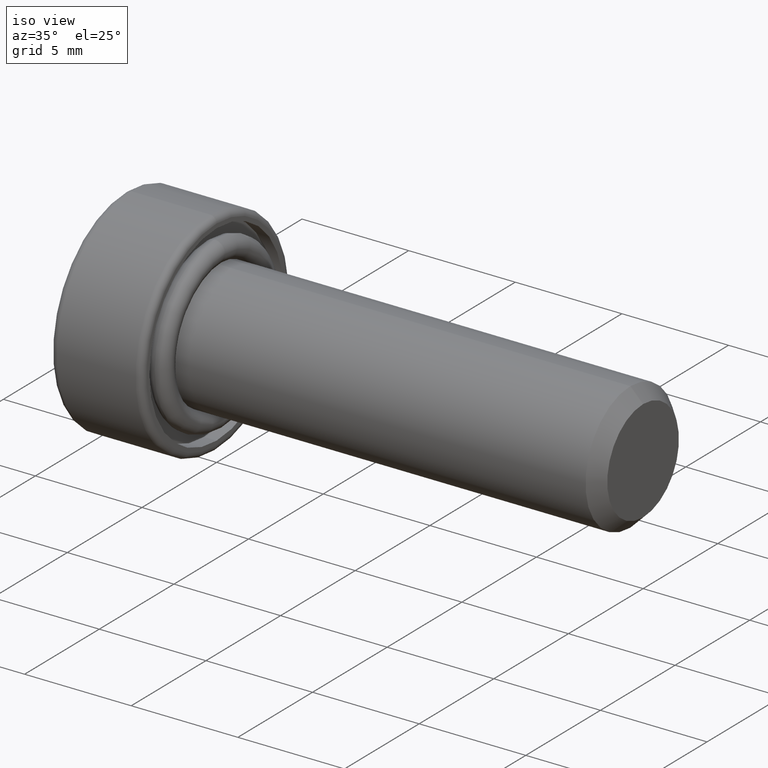
[diagram: clean part render]
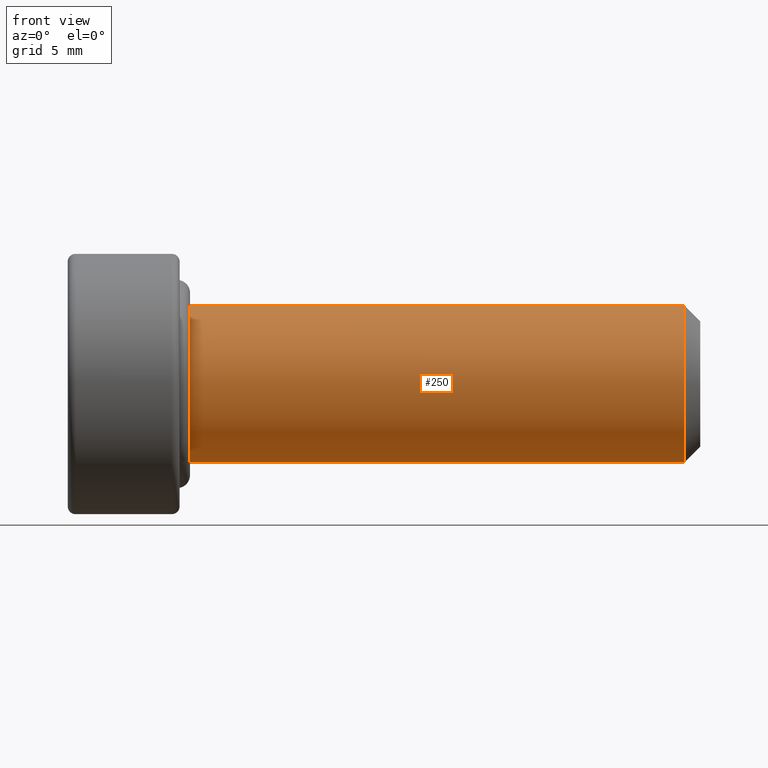
[diagram: tour spotlight — one face highlighted and labeled with its STEP entity id]
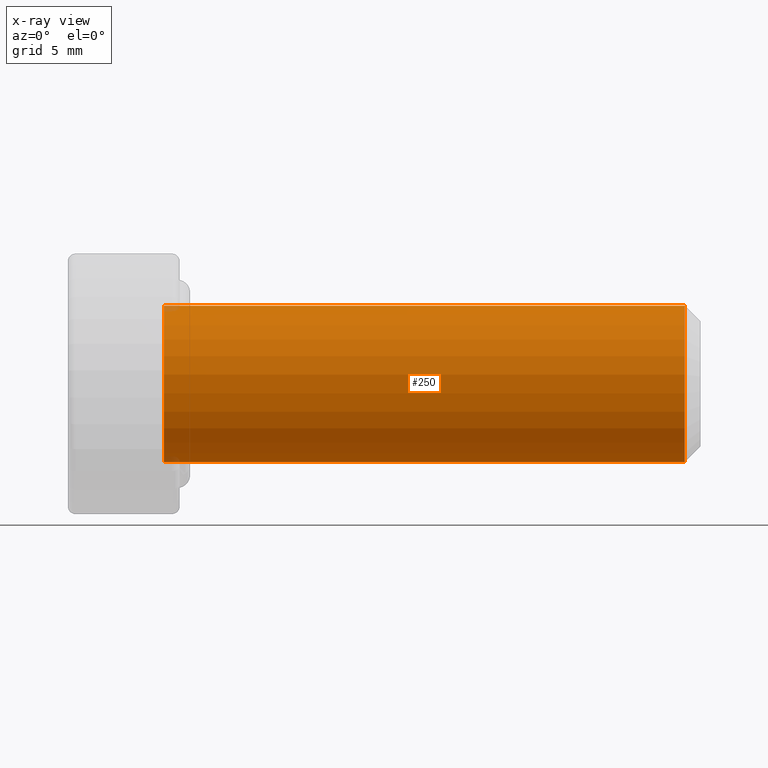
[diagram: x-ray of the same camera — body ghosted, this tour face saturated]
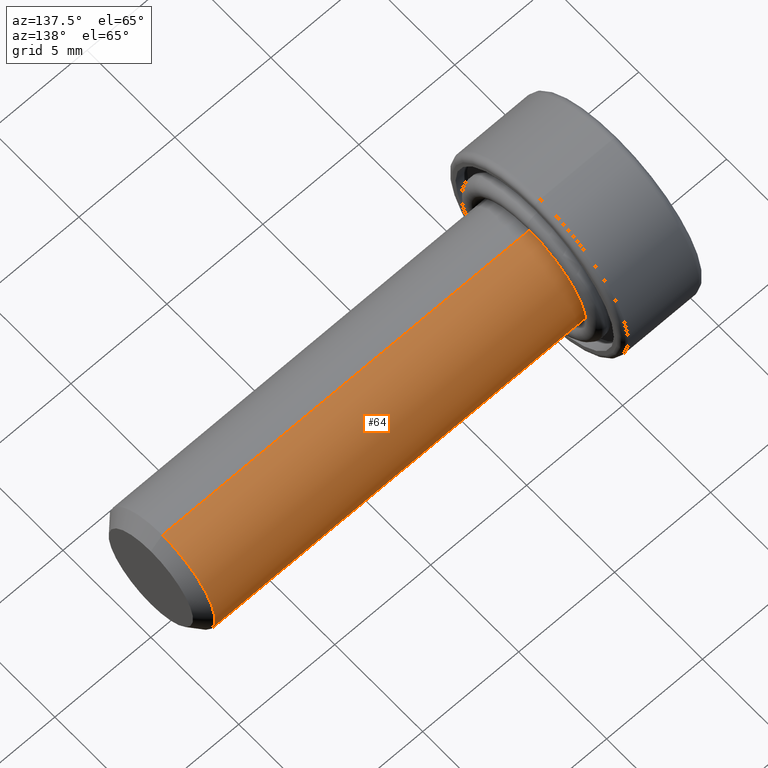
[diagram: tour spotlight — one face highlighted and labeled with its STEP entity id]
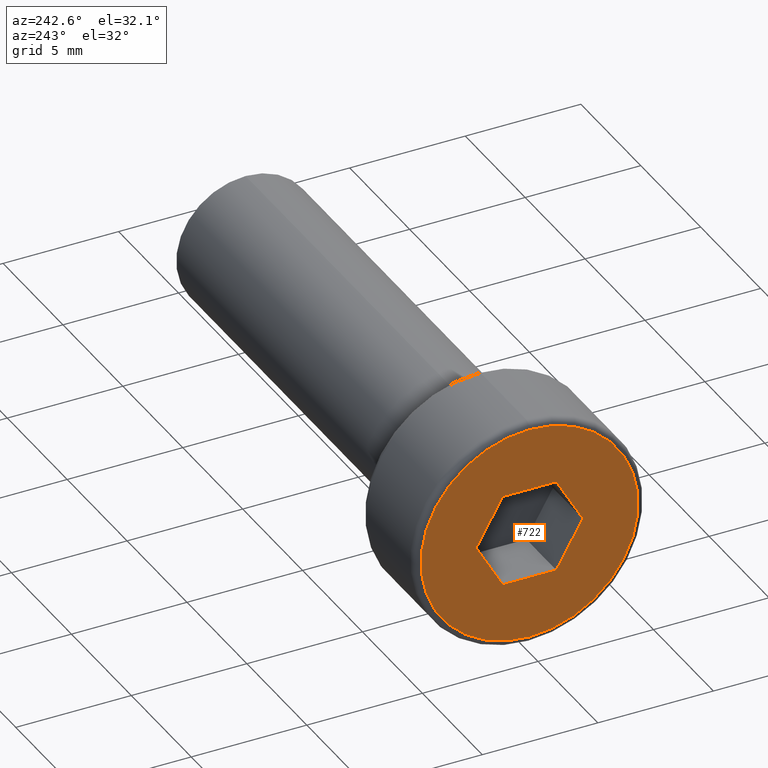
[diagram: tour spotlight — one face highlighted and labeled with its STEP entity id]
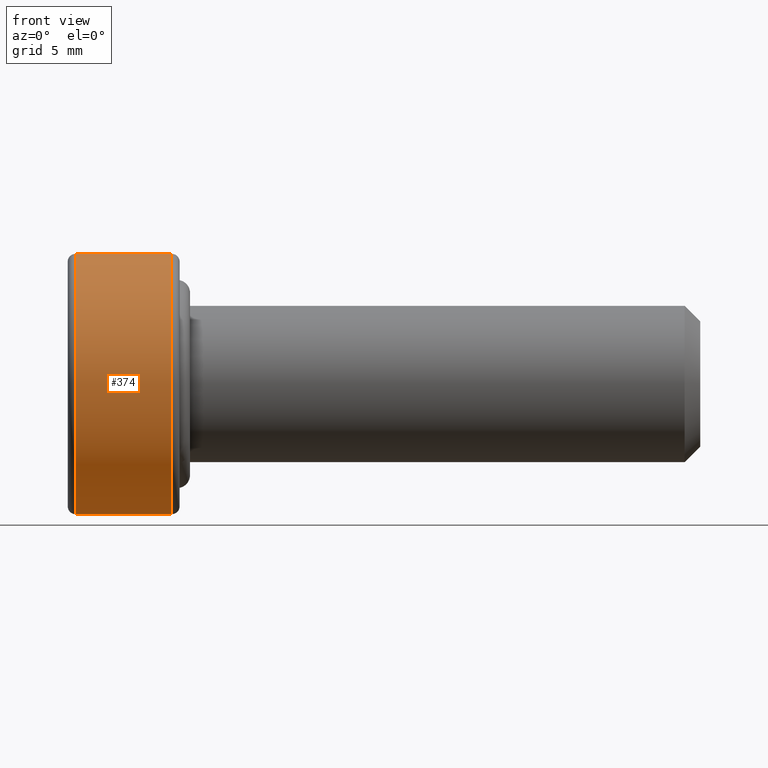
[diagram: tour spotlight — one face highlighted and labeled with its STEP entity id]
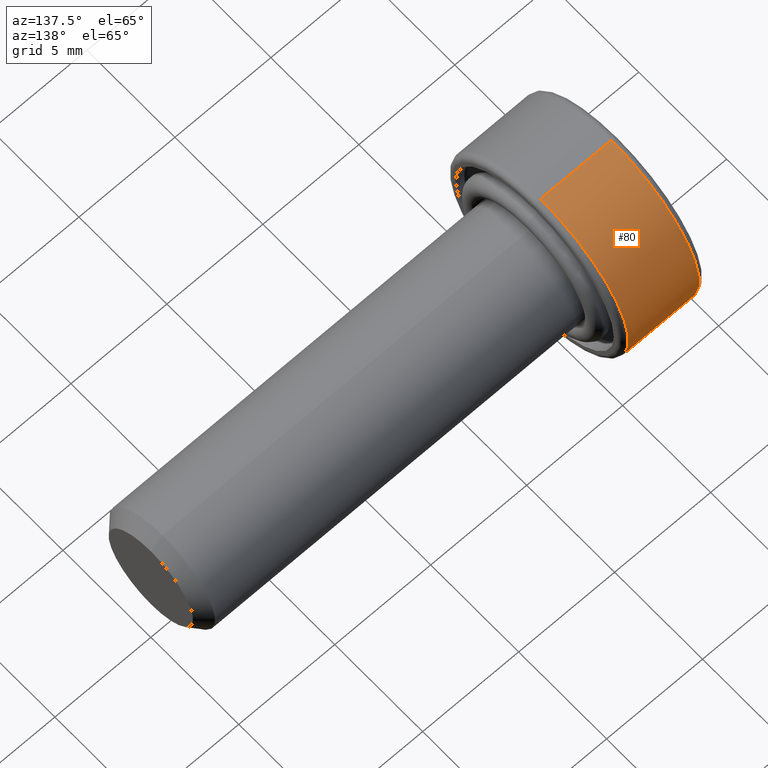
[diagram: tour spotlight — one face highlighted and labeled with its STEP entity id]
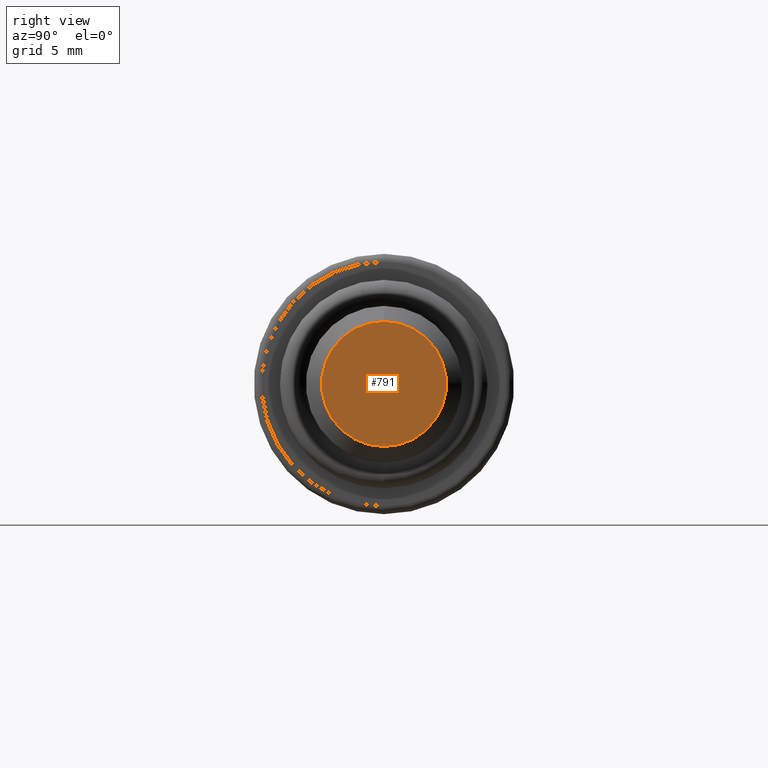
[diagram: tour spotlight — one face highlighted and labeled with its STEP entity id]
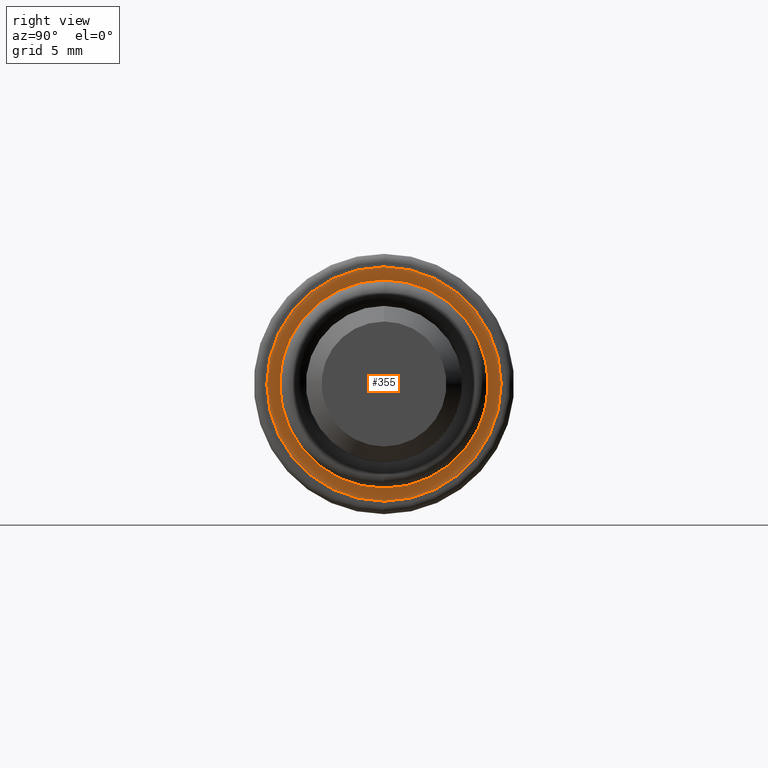
[diagram: tour spotlight — one face highlighted and labeled with its STEP entity id]
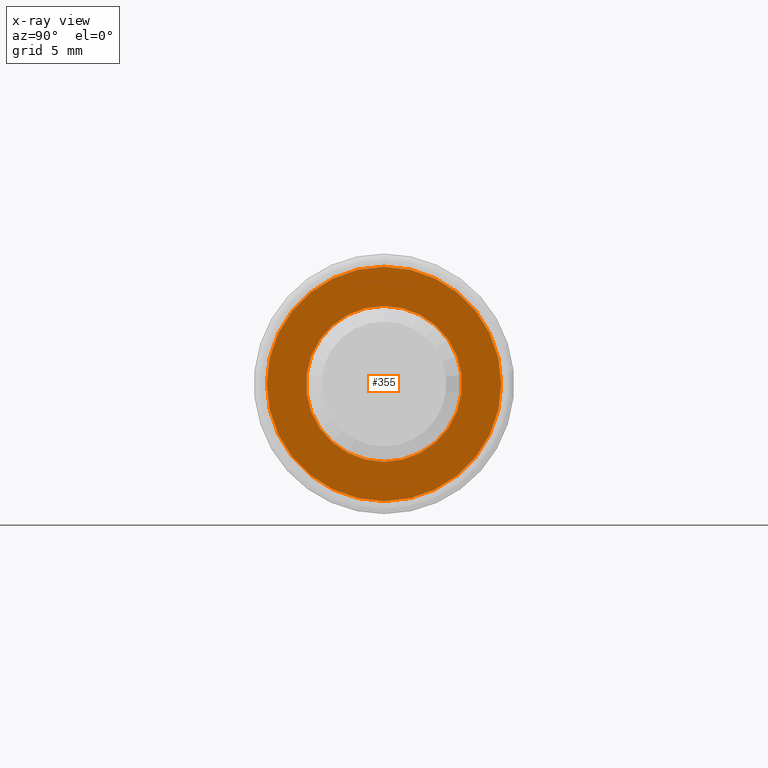
[diagram: x-ray of the same camera — body ghosted, this tour face saturated]
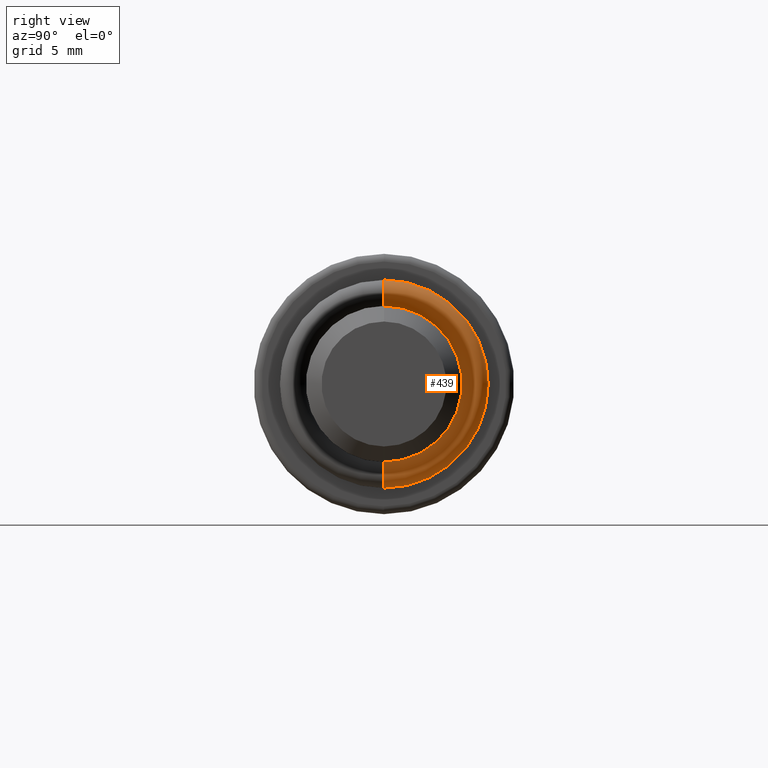
[diagram: tour spotlight — one face highlighted and labeled with its STEP entity id]
A machine part: a face-by-face anatomy tour. The part has 27 B-rep faces; the first image is the clean iso view, then the 8 largest visible faces are spotlighted one at a time (largest first), each with its STEP entity span.

Face 1 — front view, entity #250. An x-ray twin of the same camera follows (body ghosted, this face saturated) — the face is partly hidden behind the body. In plain terms, the highlighted cylindrical surface (partial cylindrical patch) has radius 3 mm, axis along (-1, -0, -0).
Definition (entity closure, byte-faithful):
#61 = VERTEX_POINT ( 'NONE', #526 ) ;
#62 = FACE_OUTER_BOUND ( 'NONE', #573, .T. ) ;
#65 = CARTESIAN_POINT ( 'NONE',  ( 19.39999999999999500, 3.673940397442060400E-016, -3.000000000000000400 ) ) ;
#110 = CARTESIAN_POINT ( 'NONE',  ( 20.00000000000000000, 3.673940397442060400E-016, -3.000000000000000400 ) ) ;
#154 = CARTESIAN_POINT ( 'NONE',  ( 19.39999999999999500, 0.0000000000000000000, 0.0000000000000000000 ) ) ;
#165 = CIRCLE ( 'NONE', #519, 3.000000000000000400 ) ;
#169 = VERTEX_POINT ( 'NONE', #455 ) ;
#175 = LINE ( 'NONE', #110, #485 ) ;
#183 = AXIS2_PLACEMENT_3D ( 'NONE', #154, #285, #223 ) ;
#188 = ORIENTED_EDGE ( 'NONE', *, *, #580, .T. ) ;
#207 = DIRECTION ( 'NONE',  ( -1.000000000000000000, -0.0000000000000000000, -0.0000000000000000000 ) ) ;
#214 = AXIS2_PLACEMENT_3D ( 'NONE', #444, #236, #234 ) ;
#223 = DIRECTION ( 'NONE',  ( 0.0000000000000000000, 0.0000000000000000000, -1.000000000000000000 ) ) ;
#234 = DIRECTION ( 'NONE',  ( 0.0000000000000000000, 0.0000000000000000000, 1.000000000000000000 ) ) ;
#236 = DIRECTION ( 'NONE',  ( -1.000000000000000000, -0.0000000000000000000, -0.0000000000000000000 ) ) ;
#250 = ADVANCED_FACE ( 'NONE', ( #62 ), #570, .T. ) ;
#257 = DIRECTION ( 'NONE',  ( 1.000000000000000000, 0.0000000000000000000, 0.0000000000000000000 ) ) ;
#285 = DIRECTION ( 'NONE',  ( -1.000000000000000000, 0.0000000000000000000, 0.0000000000000000000 ) ) ;
#305 = ORIENTED_EDGE ( 'NONE', *, *, #586, .T. ) ;
#360 = DIRECTION ( 'NONE',  ( 0.0000000000000000000, 0.0000000000000000000, -1.000000000000000000 ) ) ;
#418 = CARTESIAN_POINT ( 'NONE',  ( -0.5999999999999999800, 0.0000000000000000000, 3.000000000000000400 ) ) ;
#420 = CARTESIAN_POINT ( 'NONE',  ( -0.5999999999999999800, 0.0000000000000000000, 0.0000000000000000000 ) ) ;
#426 = DIRECTION ( 'NONE',  ( -1.000000000000000000, -0.0000000000000000000, -0.0000000000000000000 ) ) ;
#436 = ORIENTED_EDGE ( 'NONE', *, *, #764, .F. ) ;
#444 = CARTESIAN_POINT ( 'NONE',  ( 20.00000000000000000, 0.0000000000000000000, 0.0000000000000000000 ) ) ;
#455 = CARTESIAN_POINT ( 'NONE',  ( 19.39999999999999500, 0.0000000000000000000, 3.000000000000000400 ) ) ;
#467 = CARTESIAN_POINT ( 'NONE',  ( 20.00000000000000000, 0.0000000000000000000, 3.000000000000000400 ) ) ;
#469 = VECTOR ( 'NONE', #426, 1000.000000000000000 ) ;
#485 = VECTOR ( 'NONE', #207, 1000.000000000000000 ) ;
#519 = AXIS2_PLACEMENT_3D ( 'NONE', #420, #257, #360 ) ;
#526 = CARTESIAN_POINT ( 'NONE',  ( -0.5999999999999999800, 3.673940397442060400E-016, -3.000000000000000400 ) ) ;
#570 = CYLINDRICAL_SURFACE ( 'NONE', #214, 3.000000000000000400 ) ;
#573 = EDGE_LOOP ( 'NONE', ( #436, #721, #305, #188 ) ) ;
#580 = EDGE_CURVE ( 'NONE', #777, #61, #165, .T. ) ;
#586 = EDGE_CURVE ( 'NONE', #169, #777, #801, .T. ) ;
#613 = VERTEX_POINT ( 'NONE', #65 ) ;
#649 = EDGE_CURVE ( 'NONE', #613, #169, #762, .T. ) ;
#721 = ORIENTED_EDGE ( 'NONE', *, *, #649, .T. ) ;
#762 = CIRCLE ( 'NONE', #183, 3.000000000000000400 ) ;
#764 = EDGE_CURVE ( 'NONE', #613, #61, #175, .T. ) ;
#777 = VERTEX_POINT ( 'NONE', #418 ) ;
#801 = LINE ( 'NONE', #467, #469 ) ;

Face 2 — auxiliary view, entity #64. In plain terms, the highlighted cylindrical surface (partial cylindrical patch) has radius 3 mm, axis along (-1, -0, -0).
Definition (entity closure, byte-faithful):
#3 = CYLINDRICAL_SURFACE ( 'NONE', #367, 3.000000000000000400 ) ;
#53 = DIRECTION ( 'NONE',  ( 0.0000000000000000000, 0.0000000000000000000, 1.000000000000000000 ) ) ;
#61 = VERTEX_POINT ( 'NONE', #526 ) ;
#64 = ADVANCED_FACE ( 'NONE', ( #338 ), #3, .T. ) ;
#65 = CARTESIAN_POINT ( 'NONE',  ( 19.39999999999999500, 3.673940397442060400E-016, -3.000000000000000400 ) ) ;
#66 = DIRECTION ( 'NONE',  ( -1.000000000000000000, -0.0000000000000000000, -0.0000000000000000000 ) ) ;
#110 = CARTESIAN_POINT ( 'NONE',  ( 20.00000000000000000, 3.673940397442060400E-016, -3.000000000000000400 ) ) ;
#135 = ORIENTED_EDGE ( 'NONE', *, *, #655, .T. ) ;
#146 = EDGE_CURVE ( 'NONE', #169, #613, #293, .T. ) ;
#169 = VERTEX_POINT ( 'NONE', #455 ) ;
#175 = LINE ( 'NONE', #110, #485 ) ;
#207 = DIRECTION ( 'NONE',  ( -1.000000000000000000, -0.0000000000000000000, -0.0000000000000000000 ) ) ;
#280 = DIRECTION ( 'NONE',  ( 1.000000000000000000, 0.0000000000000000000, 0.0000000000000000000 ) ) ;
#292 = DIRECTION ( 'NONE',  ( 0.0000000000000000000, 0.0000000000000000000, -1.000000000000000000 ) ) ;
#293 = CIRCLE ( 'NONE', #674, 3.000000000000000400 ) ;
#312 = DIRECTION ( 'NONE',  ( -1.000000000000000000, 0.0000000000000000000, 0.0000000000000000000 ) ) ;
#319 = CARTESIAN_POINT ( 'NONE',  ( 19.39999999999999500, 0.0000000000000000000, 0.0000000000000000000 ) ) ;
#320 = AXIS2_PLACEMENT_3D ( 'NONE', #784, #280, #750 ) ;
#338 = FACE_OUTER_BOUND ( 'NONE', #639, .T. ) ;
#367 = AXIS2_PLACEMENT_3D ( 'NONE', #806, #66, #53 ) ;
#418 = CARTESIAN_POINT ( 'NONE',  ( -0.5999999999999999800, 0.0000000000000000000, 3.000000000000000400 ) ) ;
#426 = DIRECTION ( 'NONE',  ( -1.000000000000000000, -0.0000000000000000000, -0.0000000000000000000 ) ) ;
#455 = CARTESIAN_POINT ( 'NONE',  ( 19.39999999999999500, 0.0000000000000000000, 3.000000000000000400 ) ) ;
#467 = CARTESIAN_POINT ( 'NONE',  ( 20.00000000000000000, 0.0000000000000000000, 3.000000000000000400 ) ) ;
#469 = VECTOR ( 'NONE', #426, 1000.000000000000000 ) ;
#485 = VECTOR ( 'NONE', #207, 1000.000000000000000 ) ;
#526 = CARTESIAN_POINT ( 'NONE',  ( -0.5999999999999999800, 3.673940397442060400E-016, -3.000000000000000400 ) ) ;
#544 = CIRCLE ( 'NONE', #320, 3.000000000000000400 ) ;
#586 = EDGE_CURVE ( 'NONE', #169, #777, #801, .T. ) ;
#613 = VERTEX_POINT ( 'NONE', #65 ) ;
#639 = EDGE_LOOP ( 'NONE', ( #733, #819, #135, #800 ) ) ;
#655 = EDGE_CURVE ( 'NONE', #61, #777, #544, .T. ) ;
#674 = AXIS2_PLACEMENT_3D ( 'NONE', #319, #312, #292 ) ;
#733 = ORIENTED_EDGE ( 'NONE', *, *, #146, .T. ) ;
#750 = DIRECTION ( 'NONE',  ( 0.0000000000000000000, 0.0000000000000000000, -1.000000000000000000 ) ) ;
#764 = EDGE_CURVE ( 'NONE', #613, #61, #175, .T. ) ;
#777 = VERTEX_POINT ( 'NONE', #418 ) ;
#784 = CARTESIAN_POINT ( 'NONE',  ( -0.5999999999999999800, 0.0000000000000000000, 0.0000000000000000000 ) ) ;
#800 = ORIENTED_EDGE ( 'NONE', *, *, #586, .F. ) ;
#801 = LINE ( 'NONE', #467, #469 ) ;
#806 = CARTESIAN_POINT ( 'NONE',  ( 20.00000000000000000, 0.0000000000000000000, 0.0000000000000000000 ) ) ;
#819 = ORIENTED_EDGE ( 'NONE', *, *, #764, .T. ) ;

Face 3 — auxiliary view, entity #722. In plain terms, the highlighted planar face has unit normal (1, 0, 0).
Definition (entity closure, byte-faithful):
#7 = ORIENTED_EDGE ( 'NONE', *, *, #36, .F. ) ;
#12 = EDGE_CURVE ( 'NONE', #199, #616, #383, .T. ) ;
#24 = ORIENTED_EDGE ( 'NONE', *, *, #12, .F. ) ;
#36 = EDGE_CURVE ( 'NONE', #76, #172, #705, .T. ) ;
#37 = LINE ( 'NONE', #787, #536 ) ;
#40 = DIRECTION ( 'NONE',  ( 0.0000000000000000000, 0.0000000000000000000, -1.000000000000000000 ) ) ;
#68 = VERTEX_POINT ( 'NONE', #647 ) ;
#72 = DIRECTION ( 'NONE',  ( -0.0000000000000000000, -0.5000000000000000000, 0.8660254037844386000 ) ) ;
#76 = VERTEX_POINT ( 'NONE', #168 ) ;
#81 = ORIENTED_EDGE ( 'NONE', *, *, #689, .F. ) ;
#90 = CARTESIAN_POINT ( 'NONE',  ( -4.299999999999999800, -1.154700538379260100, 2.000000000000015100 ) ) ;
#91 = ORIENTED_EDGE ( 'NONE', *, *, #398, .F. ) ;
#101 = VERTEX_POINT ( 'NONE', #502 ) ;
#127 = DIRECTION ( 'NONE',  ( -0.0000000000000000000, -0.4999999999999994400, -0.8660254037844389300 ) ) ;
#130 = CARTESIAN_POINT ( 'NONE',  ( -4.299999999999999800, 1.154700538379260600, -2.000000000000013800 ) ) ;
#168 = CARTESIAN_POINT ( 'NONE',  ( -4.299999999999999800, 2.309401076758518900, 8.673617379884035500E-016 ) ) ;
#172 = VERTEX_POINT ( 'NONE', #130 ) ;
#199 = VERTEX_POINT ( 'NONE', #583 ) ;
#200 = AXIS2_PLACEMENT_3D ( 'NONE', #400, #598, #556 ) ;
#201 = CIRCLE ( 'NONE', #200, 4.700000000000000200 ) ;
#203 = VECTOR ( 'NONE', #266, 1000.000000000000100 ) ;
#211 = CARTESIAN_POINT ( 'NONE',  ( -4.299999999999999800, -1.154700538379260100, 2.000000000000015100 ) ) ;
#216 = FACE_BOUND ( 'NONE', #738, .T. ) ;
#266 = DIRECTION ( 'NONE',  ( -0.0000000000000000000, 0.4999999999999993300, 0.8660254037844389300 ) ) ;
#276 = ORIENTED_EDGE ( 'NONE', *, *, #599, .T. ) ;
#286 = CARTESIAN_POINT ( 'NONE',  ( -4.299999999999999800, -2.309401076758518000, 8.673617379884035500E-016 ) ) ;
#299 = ORIENTED_EDGE ( 'NONE', *, *, #508, .T. ) ;
#323 = DIRECTION ( 'NONE',  ( -0.0000000000000000000, 0.5000000000000003300, -0.8660254037844383700 ) ) ;
#327 = LINE ( 'NONE', #621, #512 ) ;
#330 = ORIENTED_EDGE ( 'NONE', *, *, #515, .F. ) ;
#344 = ORIENTED_EDGE ( 'NONE', *, *, #758, .F. ) ;
#362 = VECTOR ( 'NONE', #127, 1000.000000000000200 ) ;
#363 = DIRECTION ( 'NONE',  ( -0.0000000000000000000, 1.000000000000000000, -7.511572993685745900E-016 ) ) ;
#368 = DIRECTION ( 'NONE',  ( 1.000000000000000000, 0.0000000000000000000, 0.0000000000000000000 ) ) ;
#373 = LINE ( 'NONE', #572, #698 ) ;
#383 = LINE ( 'NONE', #90, #203 ) ;
#398 = EDGE_CURVE ( 'NONE', #752, #199, #662, .T. ) ;
#400 = CARTESIAN_POINT ( 'NONE',  ( -4.299999999999999800, 0.0000000000000000000, 0.0000000000000000000 ) ) ;
#483 = VECTOR ( 'NONE', #72, 1000.000000000000200 ) ;
#484 = DIRECTION ( 'NONE',  ( -0.0000000000000000000, -1.000000000000000000, 3.755786496842872900E-016 ) ) ;
#502 = CARTESIAN_POINT ( 'NONE',  ( -4.299999999999999800, 0.0000000000000000000, -4.700000000000000200 ) ) ;
#503 = AXIS2_PLACEMENT_3D ( 'NONE', #624, #368, #513 ) ;
#508 = EDGE_CURVE ( 'NONE', #101, #603, #201, .T. ) ;
#512 = VECTOR ( 'NONE', #484, 1000.000000000000000 ) ;
#513 = DIRECTION ( 'NONE',  ( 0.0000000000000000000, 0.0000000000000000000, -1.000000000000000000 ) ) ;
#515 = EDGE_CURVE ( 'NONE', #68, #76, #37, .T. ) ;
#531 = FACE_OUTER_BOUND ( 'NONE', #735, .T. ) ;
#533 = DIRECTION ( 'NONE',  ( -1.000000000000000000, -0.0000000000000000000, -0.0000000000000000000 ) ) ;
#536 = VECTOR ( 'NONE', #323, 1000.000000000000200 ) ;
#540 = CARTESIAN_POINT ( 'NONE',  ( -4.299999999999999800, -1.154700538379258100, -2.000000000000012900 ) ) ;
#556 = DIRECTION ( 'NONE',  ( 0.0000000000000000000, 0.0000000000000000000, -1.000000000000000000 ) ) ;
#572 = CARTESIAN_POINT ( 'NONE',  ( -4.299999999999999800, 1.154700538379259000, 2.000000000000013300 ) ) ;
#583 = CARTESIAN_POINT ( 'NONE',  ( -4.299999999999999800, -2.309401076758518000, 8.673617379884035500E-016 ) ) ;
#598 = DIRECTION ( 'NONE',  ( -1.000000000000000000, -0.0000000000000000000, -0.0000000000000000000 ) ) ;
#599 = EDGE_CURVE ( 'NONE', #603, #101, #651, .T. ) ;
#600 = AXIS2_PLACEMENT_3D ( 'NONE', #731, #533, #40 ) ;
#603 = VERTEX_POINT ( 'NONE', #620 ) ;
#616 = VERTEX_POINT ( 'NONE', #211 ) ;
#620 = CARTESIAN_POINT ( 'NONE',  ( -4.299999999999999800, 5.939536975864663000E-016, 4.700000000000000200 ) ) ;
#621 = CARTESIAN_POINT ( 'NONE',  ( -4.299999999999999800, -1.154700538379258300, -2.000000000000012900 ) ) ;
#624 = CARTESIAN_POINT ( 'NONE',  ( -4.299999999999999800, 0.0000000000000000000, 0.0000000000000000000 ) ) ;
#645 = CARTESIAN_POINT ( 'NONE',  ( -4.299999999999999800, 1.154700538379260600, -2.000000000000013800 ) ) ;
#647 = CARTESIAN_POINT ( 'NONE',  ( -4.299999999999999800, 1.154700538379259000, 2.000000000000013300 ) ) ;
#651 = CIRCLE ( 'NONE', #600, 4.700000000000000200 ) ;
#662 = LINE ( 'NONE', #286, #483 ) ;
#689 = EDGE_CURVE ( 'NONE', #616, #68, #373, .T. ) ;
#698 = VECTOR ( 'NONE', #363, 1000.000000000000000 ) ;
#705 = LINE ( 'NONE', #645, #362 ) ;
#722 = ADVANCED_FACE ( 'NONE', ( #216, #531 ), #726, .F. ) ;
#726 = PLANE ( 'NONE',  #503 ) ;
#731 = CARTESIAN_POINT ( 'NONE',  ( -4.299999999999999800, 0.0000000000000000000, 0.0000000000000000000 ) ) ;
#735 = EDGE_LOOP ( 'NONE', ( #299, #276 ) ) ;
#738 = EDGE_LOOP ( 'NONE', ( #91, #344, #7, #330, #81, #24 ) ) ;
#752 = VERTEX_POINT ( 'NONE', #540 ) ;
#758 = EDGE_CURVE ( 'NONE', #172, #752, #327, .T. ) ;
#787 = CARTESIAN_POINT ( 'NONE',  ( -4.299999999999999800, 2.309401076758518900, 8.673617379884035500E-016 ) ) ;

Face 4 — front view, entity #374. In plain terms, the highlighted cylindrical surface (partial cylindrical patch) has radius 5 mm, axis along (1, 0, 0).
Definition (entity closure, byte-faithful):
#1 = VERTEX_POINT ( 'NONE', #497 ) ;
#6 = AXIS2_PLACEMENT_3D ( 'NONE', #700, #816, #308 ) ;
#33 = DIRECTION ( 'NONE',  ( 1.000000000000000000, 0.0000000000000000000, 0.0000000000000000000 ) ) ;
#69 = CARTESIAN_POINT ( 'NONE',  ( -4.000000000000000000, 6.123233995736765300E-016, 5.000000000000000000 ) ) ;
#93 = ORIENTED_EDGE ( 'NONE', *, *, #204, .T. ) ;
#171 = VERTEX_POINT ( 'NONE', #691 ) ;
#204 = EDGE_CURVE ( 'NONE', #171, #637, #653, .T. ) ;
#205 = DIRECTION ( 'NONE',  ( 0.0000000000000000000, 0.0000000000000000000, -1.000000000000000000 ) ) ;
#225 = CARTESIAN_POINT ( 'NONE',  ( -4.000000000000000000, 0.0000000000000000000, 0.0000000000000000000 ) ) ;
#238 = VERTEX_POINT ( 'NONE', #69 ) ;
#246 = EDGE_CURVE ( 'NONE', #238, #637, #434, .T. ) ;
#308 = DIRECTION ( 'NONE',  ( 0.0000000000000000000, 0.0000000000000000000, -1.000000000000000000 ) ) ;
#317 = CIRCLE ( 'NONE', #464, 5.000000000000000000 ) ;
#324 = CYLINDRICAL_SURFACE ( 'NONE', #571, 5.000000000000000000 ) ;
#331 = EDGE_CURVE ( 'NONE', #1, #171, #585, .T. ) ;
#349 = FACE_OUTER_BOUND ( 'NONE', #535, .T. ) ;
#353 = DIRECTION ( 'NONE',  ( 0.0000000000000000000, 0.0000000000000000000, -1.000000000000000000 ) ) ;
#364 = DIRECTION ( 'NONE',  ( 1.000000000000000000, 0.0000000000000000000, 0.0000000000000000000 ) ) ;
#374 = ADVANCED_FACE ( 'NONE', ( #349 ), #324, .T. ) ;
#384 = DIRECTION ( 'NONE',  ( 1.000000000000000000, 0.0000000000000000000, 0.0000000000000000000 ) ) ;
#388 = CARTESIAN_POINT ( 'NONE',  ( -4.299999999999999800, 6.123233995736765300E-016, 5.000000000000000000 ) ) ;
#389 = ORIENTED_EDGE ( 'NONE', *, *, #561, .T. ) ;
#415 = VECTOR ( 'NONE', #384, 1000.000000000000000 ) ;
#423 = ORIENTED_EDGE ( 'NONE', *, *, #331, .T. ) ;
#434 = LINE ( 'NONE', #388, #415 ) ;
#464 = AXIS2_PLACEMENT_3D ( 'NONE', #225, #364, #205 ) ;
#497 = CARTESIAN_POINT ( 'NONE',  ( -4.000000000000000000, 0.0000000000000000000, -5.000000000000000000 ) ) ;
#535 = EDGE_LOOP ( 'NONE', ( #650, #389, #423, #93 ) ) ;
#545 = VECTOR ( 'NONE', #703, 1000.000000000000000 ) ;
#561 = EDGE_CURVE ( 'NONE', #238, #1, #317, .T. ) ;
#571 = AXIS2_PLACEMENT_3D ( 'NONE', #794, #33, #353 ) ;
#585 = LINE ( 'NONE', #626, #545 ) ;
#626 = CARTESIAN_POINT ( 'NONE',  ( -4.299999999999999800, 0.0000000000000000000, -5.000000000000000000 ) ) ;
#637 = VERTEX_POINT ( 'NONE', #692 ) ;
#650 = ORIENTED_EDGE ( 'NONE', *, *, #246, .F. ) ;
#653 = CIRCLE ( 'NONE', #6, 5.000000000000000000 ) ;
#691 = CARTESIAN_POINT ( 'NONE',  ( -0.2999999999999999300, 0.0000000000000000000, -5.000000000000000000 ) ) ;
#692 = CARTESIAN_POINT ( 'NONE',  ( -0.2999999999999999300, 6.123233995736765300E-016, 5.000000000000000000 ) ) ;
#700 = CARTESIAN_POINT ( 'NONE',  ( -0.2999999999999999300, 0.0000000000000000000, 0.0000000000000000000 ) ) ;
#703 = DIRECTION ( 'NONE',  ( 1.000000000000000000, 0.0000000000000000000, 0.0000000000000000000 ) ) ;
#794 = CARTESIAN_POINT ( 'NONE',  ( -4.299999999999999800, 0.0000000000000000000, 0.0000000000000000000 ) ) ;
#816 = DIRECTION ( 'NONE',  ( -1.000000000000000000, -0.0000000000000000000, -0.0000000000000000000 ) ) ;

Face 5 — auxiliary view, entity #80. In plain terms, the highlighted cylindrical surface (partial cylindrical patch) has radius 5 mm, axis along (1, 0, 0).
Definition (entity closure, byte-faithful):
#1 = VERTEX_POINT ( 'NONE', #497 ) ;
#69 = CARTESIAN_POINT ( 'NONE',  ( -4.000000000000000000, 6.123233995736765300E-016, 5.000000000000000000 ) ) ;
#80 = ADVANCED_FACE ( 'NONE', ( #523 ), #318, .T. ) ;
#108 = DIRECTION ( 'NONE',  ( 1.000000000000000000, 0.0000000000000000000, 0.0000000000000000000 ) ) ;
#109 = DIRECTION ( 'NONE',  ( 1.000000000000000000, 0.0000000000000000000, 0.0000000000000000000 ) ) ;
#141 = ORIENTED_EDGE ( 'NONE', *, *, #331, .F. ) ;
#151 = CIRCLE ( 'NONE', #611, 5.000000000000000000 ) ;
#171 = VERTEX_POINT ( 'NONE', #691 ) ;
#210 = ORIENTED_EDGE ( 'NONE', *, *, #807, .T. ) ;
#238 = VERTEX_POINT ( 'NONE', #69 ) ;
#246 = EDGE_CURVE ( 'NONE', #238, #637, #434, .T. ) ;
#318 = CYLINDRICAL_SURFACE ( 'NONE', #453, 5.000000000000000000 ) ;
#326 = DIRECTION ( 'NONE',  ( 0.0000000000000000000, 0.0000000000000000000, -1.000000000000000000 ) ) ;
#329 = DIRECTION ( 'NONE',  ( -1.000000000000000000, -0.0000000000000000000, -0.0000000000000000000 ) ) ;
#331 = EDGE_CURVE ( 'NONE', #1, #171, #585, .T. ) ;
#369 = ORIENTED_EDGE ( 'NONE', *, *, #246, .T. ) ;
#384 = DIRECTION ( 'NONE',  ( 1.000000000000000000, 0.0000000000000000000, 0.0000000000000000000 ) ) ;
#388 = CARTESIAN_POINT ( 'NONE',  ( -4.299999999999999800, 6.123233995736765300E-016, 5.000000000000000000 ) ) ;
#401 = EDGE_LOOP ( 'NONE', ( #210, #369, #723, #141 ) ) ;
#415 = VECTOR ( 'NONE', #384, 1000.000000000000000 ) ;
#421 = DIRECTION ( 'NONE',  ( 0.0000000000000000000, 0.0000000000000000000, -1.000000000000000000 ) ) ;
#429 = EDGE_CURVE ( 'NONE', #637, #171, #151, .T. ) ;
#434 = LINE ( 'NONE', #388, #415 ) ;
#453 = AXIS2_PLACEMENT_3D ( 'NONE', #769, #109, #756 ) ;
#459 = CARTESIAN_POINT ( 'NONE',  ( -0.2999999999999999300, 0.0000000000000000000, 0.0000000000000000000 ) ) ;
#461 = CIRCLE ( 'NONE', #710, 5.000000000000000000 ) ;
#497 = CARTESIAN_POINT ( 'NONE',  ( -4.000000000000000000, 0.0000000000000000000, -5.000000000000000000 ) ) ;
#523 = FACE_OUTER_BOUND ( 'NONE', #401, .T. ) ;
#545 = VECTOR ( 'NONE', #703, 1000.000000000000000 ) ;
#585 = LINE ( 'NONE', #626, #545 ) ;
#611 = AXIS2_PLACEMENT_3D ( 'NONE', #459, #329, #326 ) ;
#626 = CARTESIAN_POINT ( 'NONE',  ( -4.299999999999999800, 0.0000000000000000000, -5.000000000000000000 ) ) ;
#637 = VERTEX_POINT ( 'NONE', #692 ) ;
#690 = CARTESIAN_POINT ( 'NONE',  ( -4.000000000000000000, 0.0000000000000000000, 0.0000000000000000000 ) ) ;
#691 = CARTESIAN_POINT ( 'NONE',  ( -0.2999999999999999300, 0.0000000000000000000, -5.000000000000000000 ) ) ;
#692 = CARTESIAN_POINT ( 'NONE',  ( -0.2999999999999999300, 6.123233995736765300E-016, 5.000000000000000000 ) ) ;
#703 = DIRECTION ( 'NONE',  ( 1.000000000000000000, 0.0000000000000000000, 0.0000000000000000000 ) ) ;
#710 = AXIS2_PLACEMENT_3D ( 'NONE', #690, #108, #421 ) ;
#723 = ORIENTED_EDGE ( 'NONE', *, *, #429, .T. ) ;
#756 = DIRECTION ( 'NONE',  ( 0.0000000000000000000, 0.0000000000000000000, -1.000000000000000000 ) ) ;
#769 = CARTESIAN_POINT ( 'NONE',  ( -4.299999999999999800, 0.0000000000000000000, 0.0000000000000000000 ) ) ;
#807 = EDGE_CURVE ( 'NONE', #1, #238, #461, .T. ) ;

Face 6 — right view, entity #791. In plain terms, the highlighted planar face has unit normal (1, 0, 0).
Definition (entity closure, byte-faithful):
#38 = DIRECTION ( 'NONE',  ( 1.000000000000000000, 0.0000000000000000000, 0.0000000000000000000 ) ) ;
#138 = DIRECTION ( 'NONE',  ( 1.000000000000000000, 0.0000000000000000000, 0.0000000000000000000 ) ) ;
#139 = DIRECTION ( 'NONE',  ( 0.0000000000000000000, 0.0000000000000000000, -1.000000000000000000 ) ) ;
#157 = EDGE_LOOP ( 'NONE', ( #335, #740 ) ) ;
#239 = DIRECTION ( 'NONE',  ( 0.0000000000000000000, 0.0000000000000000000, -1.000000000000000000 ) ) ;
#248 = VERTEX_POINT ( 'NONE', #632 ) ;
#255 = DIRECTION ( 'NONE',  ( 0.0000000000000000000, 0.0000000000000000000, -1.000000000000000000 ) ) ;
#298 = CARTESIAN_POINT ( 'NONE',  ( 20.00000000000000000, 0.0000000000000000000, 2.399999999999995900 ) ) ;
#311 = VERTEX_POINT ( 'NONE', #298 ) ;
#332 = AXIS2_PLACEMENT_3D ( 'NONE', #778, #675, #139 ) ;
#335 = ORIENTED_EDGE ( 'NONE', *, *, #560, .T. ) ;
#431 = EDGE_CURVE ( 'NONE', #248, #311, #790, .T. ) ;
#496 = CIRCLE ( 'NONE', #332, 2.399999999999995900 ) ;
#506 = PLANE ( 'NONE',  #744 ) ;
#542 = CARTESIAN_POINT ( 'NONE',  ( 20.00000000000000000, 0.0000000000000000000, 0.0000000000000000000 ) ) ;
#560 = EDGE_CURVE ( 'NONE', #311, #248, #496, .T. ) ;
#632 = CARTESIAN_POINT ( 'NONE',  ( 20.00000000000000000, 3.306546357697851300E-016, -2.399999999999995900 ) ) ;
#661 = AXIS2_PLACEMENT_3D ( 'NONE', #542, #138, #255 ) ;
#675 = DIRECTION ( 'NONE',  ( 1.000000000000000000, 0.0000000000000000000, 0.0000000000000000000 ) ) ;
#740 = ORIENTED_EDGE ( 'NONE', *, *, #431, .T. ) ;
#744 = AXIS2_PLACEMENT_3D ( 'NONE', #780, #38, #239 ) ;
#778 = CARTESIAN_POINT ( 'NONE',  ( 20.00000000000000000, 0.0000000000000000000, 0.0000000000000000000 ) ) ;
#780 = CARTESIAN_POINT ( 'NONE',  ( 20.00000000000000000, 0.0000000000000000000, 0.0000000000000000000 ) ) ;
#790 = CIRCLE ( 'NONE', #661, 2.399999999999995900 ) ;
#791 = ADVANCED_FACE ( 'NONE', ( #793 ), #506, .T. ) ;
#793 = FACE_OUTER_BOUND ( 'NONE', #157, .T. ) ;

Face 7 — right view, entity #355. An x-ray twin of the same camera follows (body ghosted, this face saturated) — the face is partly hidden behind the body. In plain terms, the highlighted planar face has unit normal (1, 0, 0).
Definition (entity closure, byte-faithful):
#23 = ORIENTED_EDGE ( 'NONE', *, *, #460, .T. ) ;
#28 = FACE_BOUND ( 'NONE', #41, .T. ) ;
#41 = EDGE_LOOP ( 'NONE', ( #88, #759 ) ) ;
#61 = VERTEX_POINT ( 'NONE', #526 ) ;
#77 = EDGE_CURVE ( 'NONE', #328, #393, #668, .T. ) ;
#88 = ORIENTED_EDGE ( 'NONE', *, *, #580, .F. ) ;
#122 = DIRECTION ( 'NONE',  ( 1.000000000000000000, 0.0000000000000000000, 0.0000000000000000000 ) ) ;
#162 = DIRECTION ( 'NONE',  ( 0.0000000000000000000, 0.0000000000000000000, -1.000000000000000000 ) ) ;
#165 = CIRCLE ( 'NONE', #519, 3.000000000000000400 ) ;
#174 = FACE_OUTER_BOUND ( 'NONE', #370, .T. ) ;
#185 = DIRECTION ( 'NONE',  ( 1.000000000000000000, 0.0000000000000000000, 0.0000000000000000000 ) ) ;
#187 = ORIENTED_EDGE ( 'NONE', *, *, #77, .T. ) ;
#257 = DIRECTION ( 'NONE',  ( 1.000000000000000000, 0.0000000000000000000, 0.0000000000000000000 ) ) ;
#261 = CARTESIAN_POINT ( 'NONE',  ( -0.5999999999999999800, 5.510910596163088600E-016, 4.500000000000000000 ) ) ;
#280 = DIRECTION ( 'NONE',  ( 1.000000000000000000, 0.0000000000000000000, 0.0000000000000000000 ) ) ;
#281 = CIRCLE ( 'NONE', #772, 4.500000000000000000 ) ;
#284 = CARTESIAN_POINT ( 'NONE',  ( -0.5999999999999999800, 0.0000000000000000000, 0.0000000000000000000 ) ) ;
#303 = DIRECTION ( 'NONE',  ( 0.0000000000000000000, 0.0000000000000000000, -1.000000000000000000 ) ) ;
#320 = AXIS2_PLACEMENT_3D ( 'NONE', #784, #280, #750 ) ;
#321 = AXIS2_PLACEMENT_3D ( 'NONE', #524, #122, #303 ) ;
#328 = VERTEX_POINT ( 'NONE', #578 ) ;
#355 = ADVANCED_FACE ( 'NONE', ( #28, #174 ), #568, .T. ) ;
#360 = DIRECTION ( 'NONE',  ( 0.0000000000000000000, 0.0000000000000000000, -1.000000000000000000 ) ) ;
#370 = EDGE_LOOP ( 'NONE', ( #187, #23 ) ) ;
#393 = VERTEX_POINT ( 'NONE', #261 ) ;
#410 = DIRECTION ( 'NONE',  ( 1.000000000000000000, 0.0000000000000000000, 0.0000000000000000000 ) ) ;
#418 = CARTESIAN_POINT ( 'NONE',  ( -0.5999999999999999800, 0.0000000000000000000, 3.000000000000000400 ) ) ;
#420 = CARTESIAN_POINT ( 'NONE',  ( -0.5999999999999999800, 0.0000000000000000000, 0.0000000000000000000 ) ) ;
#460 = EDGE_CURVE ( 'NONE', #393, #328, #281, .T. ) ;
#481 = AXIS2_PLACEMENT_3D ( 'NONE', #528, #185, #507 ) ;
#507 = DIRECTION ( 'NONE',  ( 0.0000000000000000000, 0.0000000000000000000, -1.000000000000000000 ) ) ;
#519 = AXIS2_PLACEMENT_3D ( 'NONE', #420, #257, #360 ) ;
#524 = CARTESIAN_POINT ( 'NONE',  ( -0.5999999999999999800, 0.0000000000000000000, 0.0000000000000000000 ) ) ;
#526 = CARTESIAN_POINT ( 'NONE',  ( -0.5999999999999999800, 3.673940397442060400E-016, -3.000000000000000400 ) ) ;
#528 = CARTESIAN_POINT ( 'NONE',  ( -0.5999999999999999800, 0.0000000000000000000, 0.0000000000000000000 ) ) ;
#544 = CIRCLE ( 'NONE', #320, 3.000000000000000400 ) ;
#568 = PLANE ( 'NONE',  #481 ) ;
#578 = CARTESIAN_POINT ( 'NONE',  ( -0.5999999999999999800, 0.0000000000000000000, -4.500000000000000000 ) ) ;
#580 = EDGE_CURVE ( 'NONE', #777, #61, #165, .T. ) ;
#655 = EDGE_CURVE ( 'NONE', #61, #777, #544, .T. ) ;
#668 = CIRCLE ( 'NONE', #321, 4.500000000000000000 ) ;
#750 = DIRECTION ( 'NONE',  ( 0.0000000000000000000, 0.0000000000000000000, -1.000000000000000000 ) ) ;
#759 = ORIENTED_EDGE ( 'NONE', *, *, #655, .F. ) ;
#772 = AXIS2_PLACEMENT_3D ( 'NONE', #284, #410, #162 ) ;
#777 = VERTEX_POINT ( 'NONE', #418 ) ;
#784 = CARTESIAN_POINT ( 'NONE',  ( -0.5999999999999999800, 0.0000000000000000000, 0.0000000000000000000 ) ) ;

Face 8 — right view, entity #439. In plain terms, the highlighted toroidal blend (fillet) surface has major radius 3.5 mm and minor (blend) radius 0.5 mm.
Definition (entity closure, byte-faithful):
#27 = EDGE_CURVE ( 'NONE', #117, #279, #39, .T. ) ;
#39 = CIRCLE ( 'NONE', #144, 2.999999999999999600 ) ;
#47 = AXIS2_PLACEMENT_3D ( 'NONE', #55, #396, #708 ) ;
#55 = CARTESIAN_POINT ( 'NONE',  ( -0.1000000000000000100, 0.0000000000000000000, 0.0000000000000000000 ) ) ;
#56 = DIRECTION ( 'NONE',  ( 0.0000000000000000000, 0.0000000000000000000, -1.000000000000000000 ) ) ;
#60 = DIRECTION ( 'NONE',  ( 0.0000000000000000000, 0.0000000000000000000, -1.000000000000000000 ) ) ;
#75 = DIRECTION ( 'NONE',  ( 0.0000000000000000000, 1.000000000000000000, -1.224646799147353200E-016 ) ) ;
#117 = VERTEX_POINT ( 'NONE', #643 ) ;
#134 = CARTESIAN_POINT ( 'NONE',  ( -0.1000000000000000700, 3.673940397442059400E-016, 2.999999999999999600 ) ) ;
#144 = AXIS2_PLACEMENT_3D ( 'NONE', #315, #441, #60 ) ;
#145 = DIRECTION ( 'NONE',  ( 1.000000000000000000, -0.0000000000000000000, -0.0000000000000000000 ) ) ;
#190 = VERTEX_POINT ( 'NONE', #591 ) ;
#196 = AXIS2_PLACEMENT_3D ( 'NONE', #269, #75, #715 ) ;
#209 = EDGE_CURVE ( 'NONE', #359, #190, #274, .T. ) ;
#222 = ORIENTED_EDGE ( 'NONE', *, *, #209, .T. ) ;
#245 = CARTESIAN_POINT ( 'NONE',  ( -0.1000000000000000100, 0.0000000000000000000, -3.499999999999999600 ) ) ;
#265 = DIRECTION ( 'NONE',  ( 0.0000000000000000000, 0.0000000000000000000, -1.000000000000000000 ) ) ;
#267 = CARTESIAN_POINT ( 'NONE',  ( -0.1000000000000000100, 0.0000000000000000000, 0.0000000000000000000 ) ) ;
#269 = CARTESIAN_POINT ( 'NONE',  ( -0.1000000000000000100, 4.286263797015736100E-016, 3.499999999999999600 ) ) ;
#274 = CIRCLE ( 'NONE', #47, 4.000000000000000000 ) ;
#279 = VERTEX_POINT ( 'NONE', #134 ) ;
#301 = AXIS2_PLACEMENT_3D ( 'NONE', #245, #812, #56 ) ;
#315 = CARTESIAN_POINT ( 'NONE',  ( -0.1000000000000000700, 0.0000000000000000000, 0.0000000000000000000 ) ) ;
#354 = EDGE_CURVE ( 'NONE', #359, #117, #743, .T. ) ;
#359 = VERTEX_POINT ( 'NONE', #810 ) ;
#396 = DIRECTION ( 'NONE',  ( 1.000000000000000000, -0.0000000000000000000, -0.0000000000000000000 ) ) ;
#437 = ORIENTED_EDGE ( 'NONE', *, *, #487, .T. ) ;
#439 = ADVANCED_FACE ( 'NONE', ( #641 ), #509, .T. ) ;
#441 = DIRECTION ( 'NONE',  ( 1.000000000000000000, -0.0000000000000000000, -0.0000000000000000000 ) ) ;
#443 = CIRCLE ( 'NONE', #196, 0.5000000000000004400 ) ;
#487 = EDGE_CURVE ( 'NONE', #190, #279, #443, .T. ) ;
#493 = ORIENTED_EDGE ( 'NONE', *, *, #354, .F. ) ;
#495 = EDGE_LOOP ( 'NONE', ( #493, #222, #437, #779 ) ) ;
#509 = TOROIDAL_SURFACE ( 'NONE', #730, 3.499999999999999600, 0.5000000000000001100 ) ;
#591 = CARTESIAN_POINT ( 'NONE',  ( -0.1000000000000000100, 4.898587196589412800E-016, 4.000000000000000000 ) ) ;
#641 = FACE_OUTER_BOUND ( 'NONE', #495, .T. ) ;
#643 = CARTESIAN_POINT ( 'NONE',  ( -0.1000000000000000700, 0.0000000000000000000, -2.999999999999999600 ) ) ;
#708 = DIRECTION ( 'NONE',  ( 0.0000000000000000000, 0.0000000000000000000, -1.000000000000000000 ) ) ;
#715 = DIRECTION ( 'NONE',  ( 0.0000000000000000000, 1.224646799147352500E-016, 1.000000000000000000 ) ) ;
#730 = AXIS2_PLACEMENT_3D ( 'NONE', #267, #145, #265 ) ;
#743 = CIRCLE ( 'NONE', #301, 0.5000000000000004400 ) ;
#779 = ORIENTED_EDGE ( 'NONE', *, *, #27, .F. ) ;
#810 = CARTESIAN_POINT ( 'NONE',  ( -0.1000000000000000100, 0.0000000000000000000, -4.000000000000000000 ) ) ;
#812 = DIRECTION ( 'NONE',  ( -0.0000000000000000000, -1.000000000000000000, -0.0000000000000000000 ) ) ;